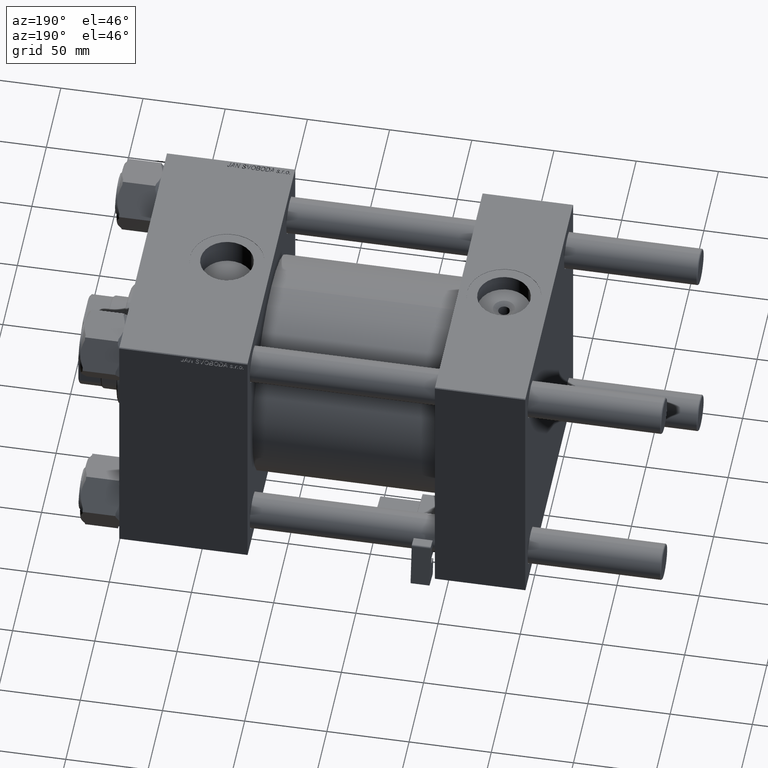
[diagram: clean part render]
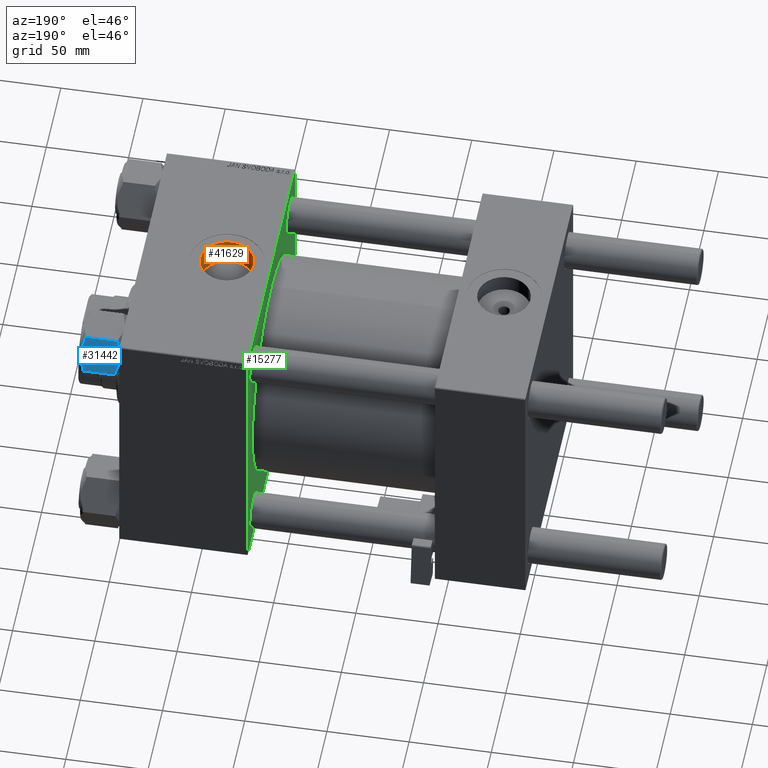
[diagram: same view with three faces highlighted in distinct colors, each labeled with its STEP entity id]
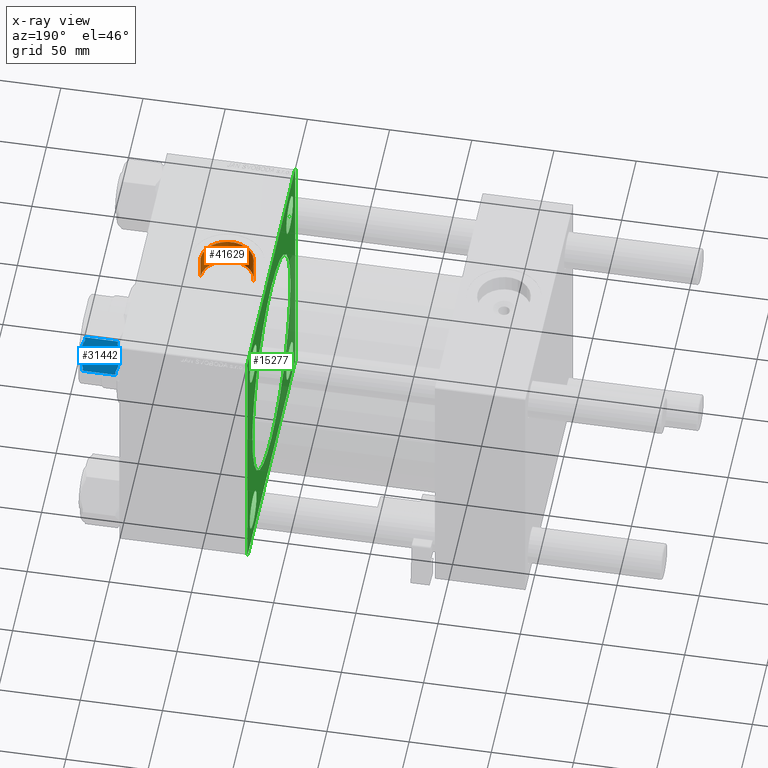
[diagram: x-ray of the same camera — body ghosted, the three highlighted faces saturated]
A machine part, auxiliary view with three faces highlighted in distinct colors.
The next image is the same camera in x-ray (body ghosted, the three faces saturated) — at least one of them is partly hidden behind the body in this view.
Their STEP definitions:

[orange] entity #41629 — the highlighted cylindrical surface (edge-blend (fillet) strip) has radius 16.12 mm, axis along (0, 0, -1).
#3795 = CARTESIAN_POINT ( 'NONE',  ( 196.0000000000000000, -1.387778780781445676E-14, 105.2999999999999829 ) ) ;
#3873 = DIRECTION ( 'NONE',  ( 0.000000000000000000, 0.000000000000000000, -1.000000000000000000 ) ) ;
#6994 = CARTESIAN_POINT ( 'NONE',  ( 179.8800000000000239, -1.387778780781445676E-14, 82.29999999999998295 ) ) ;
#7617 = CARTESIAN_POINT ( 'NONE',  ( 212.1200000000000045, -1.190365716758892667E-14, 82.29999999999998295 ) ) ;
#7730 = CARTESIAN_POINT ( 'NONE',  ( 212.1200000000000045, -1.190365716758892667E-14, 66.09999999999998010 ) ) ;
#9325 = ORIENTED_EDGE ( 'NONE', *, *, #51300, .T. ) ;
#10613 = DIRECTION ( 'NONE',  ( 0.000000000000000000, 0.000000000000000000, 1.000000000000000000 ) ) ;
#11152 = CARTESIAN_POINT ( 'NONE',  ( 196.0000000000000000, -1.387778780781445676E-14, 66.09999999999998010 ) ) ;
#12385 = DIRECTION ( 'NONE',  ( -0.000000000000000000, -0.000000000000000000, -1.000000000000000000 ) ) ;
#14525 = EDGE_LOOP ( 'NONE', ( #50724, #9325, #43600, #21836 ) ) ;
#15154 = DIRECTION ( 'NONE',  ( 1.000000000000000000, 0.000000000000000000, 0.000000000000000000 ) ) ;
#16196 = CARTESIAN_POINT ( 'NONE',  ( 179.8800000000000239, -1.387778780781445676E-14, 66.09999999999998010 ) ) ;
#16329 = FACE_OUTER_BOUND ( 'NONE', #14525, .T. ) ;
#17672 = VECTOR ( 'NONE', #34645, 1000.000000000000000 ) ;
#19776 = CIRCLE ( 'NONE', #28299, 16.11999999999999389 ) ;
#21458 = VECTOR ( 'NONE', #3873, 1000.000000000000000 ) ;
#21836 = ORIENTED_EDGE ( 'NONE', *, *, #37182, .F. ) ;
#22405 = LINE ( 'NONE', #38623, #17672 ) ;
#23687 = VERTEX_POINT ( 'NONE', #16196 ) ;
#27651 = AXIS2_PLACEMENT_3D ( 'NONE', #44607, #12385, #36645 ) ;
#28038 = AXIS2_PLACEMENT_3D ( 'NONE', #3795, #36819, #36032 ) ;
#28299 = AXIS2_PLACEMENT_3D ( 'NONE', #11152, #10613, #15154 ) ;
#32513 = EDGE_CURVE ( 'NONE', #32545, #35892, #32796, .T. ) ;
#32545 = VERTEX_POINT ( 'NONE', #7617 ) ;
#32796 = CIRCLE ( 'NONE', #27651, 16.11999999999999389 ) ;
#34645 = DIRECTION ( 'NONE',  ( 0.000000000000000000, 0.000000000000000000, -1.000000000000000000 ) ) ;
#35892 = VERTEX_POINT ( 'NONE', #6994 ) ;
#36032 = DIRECTION ( 'NONE',  ( -1.000000000000000000, 0.000000000000000000, 0.000000000000000000 ) ) ;
#36645 = DIRECTION ( 'NONE',  ( 1.000000000000000000, 0.000000000000000000, 0.000000000000000000 ) ) ;
#36819 = DIRECTION ( 'NONE',  ( 0.000000000000000000, 0.000000000000000000, -1.000000000000000000 ) ) ;
#37182 = EDGE_CURVE ( 'NONE', #35892, #23687, #22405, .T. ) ;
#38060 = VERTEX_POINT ( 'NONE', #7730 ) ;
#38623 = CARTESIAN_POINT ( 'NONE',  ( 179.8800000000000239, -1.387778780781445676E-14, 105.2999999999999829 ) ) ;
#40278 = CYLINDRICAL_SURFACE ( 'NONE', #28038, 16.11999999999999389 ) ;
#41629 = ADVANCED_FACE ( 'NONE', ( #16329 ), #40278, .F. ) ;
#43600 = ORIENTED_EDGE ( 'NONE', *, *, #52446, .F. ) ;
#44068 = LINE ( 'NONE', #52587, #21458 ) ;
#44607 = CARTESIAN_POINT ( 'NONE',  ( 196.0000000000000000, -1.387778780781445676E-14, 82.29999999999998295 ) ) ;
#50724 = ORIENTED_EDGE ( 'NONE', *, *, #32513, .F. ) ;
#51300 = EDGE_CURVE ( 'NONE', #32545, #38060, #44068, .T. ) ;
#52446 = EDGE_CURVE ( 'NONE', #23687, #38060, #19776, .T. ) ;
#52587 = CARTESIAN_POINT ( 'NONE',  ( 212.1200000000000045, -1.190365716758892509E-14, 105.2999999999999829 ) ) ;

[blue] entity #31442 — the highlighted planar face has unit normal (-0, -0.9104, -0.4137).
#214 = EDGE_CURVE ( 'NONE', #40071, #34348, #11263, .T. ) ;
#285 = CARTESIAN_POINT ( 'NONE',  ( -0.7711943830714006465, 18.72346922981957462, -0.01195010307163931612 ) ) ;
#541 = CARTESIAN_POINT ( 'NONE',  ( -5.284196261866802580, 18.72346922981957107, -0.7181181227872970307 ) ) ;
#1169 = DIRECTION ( 'NONE',  ( 8.023697853731762712E-16, -1.000000000000000000, 0.000000000000000000 ) ) ;
#2153 = CARTESIAN_POINT ( 'NONE',  ( -3.046460787050294439, 18.72346922981957817, -23.80854718362129319 ) ) ;
#3135 = CARTESIAN_POINT ( 'NONE',  ( -8.882222521378199787, 18.72346922981957107, -2.000000000000000000 ) ) ;
#3552 = EDGE_CURVE ( 'NONE', #23696, #39832, #7657, .T. ) ;
#3809 = CARTESIAN_POINT ( 'NONE',  ( 10.80999999999998629, 18.72346922981958528, -22.00000000000000000 ) ) ;
#4565 = VERTEX_POINT ( 'NONE', #51193 ) ;
#5234 = ORIENTED_EDGE ( 'NONE', *, *, #41963, .F. ) ;
#5282 = LINE ( 'NONE', #13529, #8411 ) ;
#5314 = CARTESIAN_POINT ( 'NONE',  ( -3.058371725687361486, 18.72346922981957462, -0.2332142928950868555 ) ) ;
#5461 = CARTESIAN_POINT ( 'NONE',  ( 6.004110770064962743, 18.72346922981957817, -0.9271504873037269556 ) ) ;
#5836 = VECTOR ( 'NONE', #35346, 1000.000000000000000 ) ;
#6572 = ORIENTED_EDGE ( 'NONE', *, *, #9795, .F. ) ;
#7657 = LINE ( 'NONE', #15652, #5836 ) ;
#7700 = VERTEX_POINT ( 'NONE', #31035 ) ;
#8078 = AXIS2_PLACEMENT_3D ( 'NONE', #9415, #1169, #30414 ) ;
#8411 = VECTOR ( 'NONE', #29257, 1000.000000000000000 ) ;
#8523 = CARTESIAN_POINT ( 'NONE',  ( 3.806221811192755933, 18.72346922981958528, -23.63054087581592810 ) ) ;
#8789 = CARTESIAN_POINT ( 'NONE',  ( -7.459573834530397463, 18.72346922981957107, -1.419798007050268929 ) ) ;
#9415 = CARTESIAN_POINT ( 'NONE',  ( -10.81000000000001471, 18.72346922981956752, -24.00000000000000000 ) ) ;
#9760 = ORIENTED_EDGE ( 'NONE', *, *, #28777, .F. ) ;
#9795 = EDGE_CURVE ( 'NONE', #4565, #40071, #10904, .T. ) ;
#9880 = CARTESIAN_POINT ( 'NONE',  ( -8.180319050237788048, 18.72346922981957107, -22.30084069178079176 ) ) ;
#10036 = ORIENTED_EDGE ( 'NONE', *, *, #28157, .F. ) ;
#10904 = LINE ( 'NONE', #23977, #28721 ) ;
#11263 = B_SPLINE_CURVE_WITH_KNOTS ( 'NONE', 3,
 ( #49916, #41927, #25450, #5461, #21715, #37433, #13196, #17727 ),
 .UNSPECIFIED., .F., .F.,
 ( 4, 2, 2, 4 ),
 ( 0.02914159164821654435, 0.03142872273350533208, 0.03371585381879412674, 0.03829011598937170913 ),
 .UNSPECIFIED. ) ;
#11377 = CARTESIAN_POINT ( 'NONE',  ( -10.81000000000001471, 18.72346922981956752, -24.00000000000000000 ) ) ;
#11980 = VECTOR ( 'NONE', #27358, 1000.000000000000000 ) ;
#12244 = CARTESIAN_POINT ( 'NONE',  ( 5.284196261866782152, 18.72346922981958528, -23.28188187721269742 ) ) ;
#12504 = CARTESIAN_POINT ( 'NONE',  ( 1.921304447834779605, 18.72346922981957817, -23.90544093450552765 ) ) ;
#12793 = EDGE_CURVE ( 'NONE', #39832, #4565, #5282, .T. ) ;
#13040 = CARTESIAN_POINT ( 'NONE',  ( 8.177288578347823744, 18.72346922981958883, -22.30213957303345396 ) ) ;
#13165 = CARTESIAN_POINT ( 'NONE',  ( -10.81000000000001471, 18.72346922981956752, -22.00000000000000000 ) ) ;
#13196 = CARTESIAN_POINT ( 'NONE',  ( 1.538851192155953340, 18.72346922981958173, -1.895998549134026195E-14 ) ) ;
#13529 = CARTESIAN_POINT ( 'NONE',  ( 10.80999999999998629, 18.72346922981958528, -24.00000000000000000 ) ) ;
#14988 = VECTOR ( 'NONE', #51229, 1000.000000000000000 ) ;
#15652 = CARTESIAN_POINT ( 'NONE',  ( -10.81000000000001471, 18.72346922981956752, -22.00000000000000000 ) ) ;
#15992 = CARTESIAN_POINT ( 'NONE',  ( 0.3838633933595110292, 18.72346922981957817, -23.99999999999998224 ) ) ;
#16461 = CARTESIAN_POINT ( 'NONE',  ( 8.882222521378167812, 18.72346922981958528, -22.00000000000000000 ) ) ;
#16791 = CARTESIAN_POINT ( 'NONE',  ( -6.014330298555132792, 18.72346922981957107, -0.9304907305360451408 ) ) ;
#17125 = B_SPLINE_CURVE_WITH_KNOTS ( 'NONE', 3,
 ( #33293, #15992, #24784, #32225, #12504, #48714, #8523, #12244, #49502, #32761, #13040, #20253 ),
 .UNSPECIFIED., .F., .F.,
 ( 4, 2, 2, 2, 2, 4 ),
 ( 0.03829011598937170219, 0.03943115666170205619, 0.04057219733403241019, 0.04285427867869311819, 0.04513636002335383313, 0.04741844136801454113 ),
 .UNSPECIFIED. ) ;
#17727 = CARTESIAN_POINT ( 'NONE',  ( -1.502314598737160570E-14, 18.72346922981957817, 0.000000000000000000 ) ) ;
#18662 = CARTESIAN_POINT ( 'NONE',  ( -1.538851192155984204, 18.72346922981958173, -23.99999999999998934 ) ) ;
#18799 = ORIENTED_EDGE ( 'NONE', *, *, #12793, .F. ) ;
#19134 = CARTESIAN_POINT ( 'NONE',  ( 8.882222521378167812, 18.72346922981958528, -2.000000000000000000 ) ) ;
#20253 = CARTESIAN_POINT ( 'NONE',  ( 8.882222521378167812, 18.72346922981958528, -22.00000000000000000 ) ) ;
#20381 = DIRECTION ( 'NONE',  ( -1.000000000000000000, -8.023697853731762712E-16, 0.000000000000000000 ) ) ;
#20459 = CARTESIAN_POINT ( 'NONE',  ( -1.502314598737160570E-14, 18.72346922981957817, -24.00000000000000000 ) ) ;
#20521 = CARTESIAN_POINT ( 'NONE',  ( -0.3838633933595416159, 18.72346922981957462, -1.912487457173910329E-14 ) ) ;
#20779 = CARTESIAN_POINT ( 'NONE',  ( -3.806221811192781246, 18.72346922981957107, -0.3694591241840637919 ) ) ;
#21715 = CARTESIAN_POINT ( 'NONE',  ( 5.269460841173438048, 18.72346922981958173, -0.7140404030614316833 ) ) ;
#22140 = CARTESIAN_POINT ( 'NONE',  ( -5.269460841173470023, 18.72346922981956752, -23.28595959693856798 ) ) ;
#23042 = LINE ( 'NONE', #26760, #14988 ) ;
#23604 = ORIENTED_EDGE ( 'NONE', *, *, #34575, .F. ) ;
#23696 = VERTEX_POINT ( 'NONE', #16461 ) ;
#23977 = CARTESIAN_POINT ( 'NONE',  ( -10.81000000000001471, 18.72346922981956752, -2.000000000000001776 ) ) ;
#24784 = CARTESIAN_POINT ( 'NONE',  ( 0.7711943830713722248, 18.72346922981957817, -23.98804989692836998 ) ) ;
#25450 = CARTESIAN_POINT ( 'NONE',  ( 7.462432408233299341, 18.72346922981958528, -1.420646699533979262 ) ) ;
#25917 = FACE_OUTER_BOUND ( 'NONE', #27933, .T. ) ;
#26135 = CARTESIAN_POINT ( 'NONE',  ( -7.462432408233326875, 18.72346922981957107, -22.57935330046602118 ) ) ;
#26760 = CARTESIAN_POINT ( 'NONE',  ( -10.81000000000001471, 18.72346922981956752, -22.00000000000000000 ) ) ;
#27358 = DIRECTION ( 'NONE',  ( -0.000000000000000000, -0.000000000000000000, 1.000000000000000000 ) ) ;
#27625 = ORIENTED_EDGE ( 'NONE', *, *, #47513, .T. ) ;
#27905 = VERTEX_POINT ( 'NONE', #30749 ) ;
#27933 = EDGE_LOOP ( 'NONE', ( #23604, #27625, #9760, #5234, #31501, #6572, #18799, #45973, #10036, #45163 ) ) ;
#28157 = EDGE_CURVE ( 'NONE', #50912, #23696, #17125, .T. ) ;
#28721 = VECTOR ( 'NONE', #40196, 1000.000000000000000 ) ;
#28777 = EDGE_CURVE ( 'NONE', #50754, #7700, #40343, .T. ) ;
#29257 = DIRECTION ( 'NONE',  ( -0.000000000000000000, -0.000000000000000000, 1.000000000000000000 ) ) ;
#29289 = CARTESIAN_POINT ( 'NONE',  ( -1.502314598737160570E-14, 18.72346922981957817, 0.000000000000000000 ) ) ;
#30414 = DIRECTION ( 'NONE',  ( 1.000000000000000000, 8.023697853731762712E-16, 0.000000000000000000 ) ) ;
#30749 = CARTESIAN_POINT ( 'NONE',  ( -8.882222521378199787, 18.72346922981957107, -22.00000000000000000 ) ) ;
#30990 = VECTOR ( 'NONE', #20381, 1000.000000000000000 ) ;
#31035 = CARTESIAN_POINT ( 'NONE',  ( -10.81000000000001471, 18.72346922981956752, -2.000000000000001776 ) ) ;
#31442 = ADVANCED_FACE ( 'NONE', ( #25917 ), #34170, .F. ) ;
#31501 = ORIENTED_EDGE ( 'NONE', *, *, #214, .F. ) ;
#32225 = CARTESIAN_POINT ( 'NONE',  ( 1.539734355582345060, 18.72346922981957817, -23.94071174619770304 ) ) ;
#32761 = CARTESIAN_POINT ( 'NONE',  ( 7.459573834530374370, 18.72346922981958173, -22.58020199294972130 ) ) ;
#33026 = CARTESIAN_POINT ( 'NONE',  ( -8.882222521378199787, 18.72346922981957107, -2.000000000000000000 ) ) ;
#33293 = CARTESIAN_POINT ( 'NONE',  ( -1.502314598737160570E-14, 18.72346922981957817, -24.00000000000000000 ) ) ;
#34170 = PLANE ( 'NONE',  #8078 ) ;
#34348 = VERTEX_POINT ( 'NONE', #40902 ) ;
#34575 = EDGE_CURVE ( 'NONE', #37510, #27905, #23042, .T. ) ;
#35346 = DIRECTION ( 'NONE',  ( 1.000000000000000000, 8.023697853731762712E-16, 0.000000000000000000 ) ) ;
#35831 = CARTESIAN_POINT ( 'NONE',  ( -10.81000000000001471, 18.72346922981956752, -2.000000000000001776 ) ) ;
#35885 = LINE ( 'NONE', #11377, #11980 ) ;
#36114 = EDGE_CURVE ( 'NONE', #27905, #50912, #46890, .T. ) ;
#36558 = B_SPLINE_CURVE_WITH_KNOTS ( 'NONE', 3,
 ( #29289, #20521, #285, #37282, #36758, #5314, #20779, #541, #16791, #8789, #49507, #33026 ),
 .UNSPECIFIED., .F., .F.,
 ( 4, 2, 2, 2, 2, 4 ),
 ( 0.03829011598937170913, 0.03943115666170206313, 0.04057219733403241713, 0.04285427867869312513, 0.04513636002335383313, 0.04741844136801454113 ),
 .UNSPECIFIED. ) ;
#36758 = CARTESIAN_POINT ( 'NONE',  ( -1.921304447834809803, 18.72346922981957462, -0.09455906549447051779 ) ) ;
#37282 = CARTESIAN_POINT ( 'NONE',  ( -1.539734355582373038, 18.72346922981957817, -0.05928825380230225151 ) ) ;
#37433 = CARTESIAN_POINT ( 'NONE',  ( 3.046460787050262908, 18.72346922981958528, -0.1914528163787014292 ) ) ;
#37510 = VERTEX_POINT ( 'NONE', #13165 ) ;
#38617 = CARTESIAN_POINT ( 'NONE',  ( -6.004110770064989389, 18.72346922981956396, -23.07284951269626561 ) ) ;
#39832 = VERTEX_POINT ( 'NONE', #3809 ) ;
#40071 = VERTEX_POINT ( 'NONE', #19134 ) ;
#40196 = DIRECTION ( 'NONE',  ( -1.000000000000000000, -8.023697853731762712E-16, 0.000000000000000000 ) ) ;
#40343 = LINE ( 'NONE', #35831, #30990 ) ;
#40902 = CARTESIAN_POINT ( 'NONE',  ( -1.502314598737160570E-14, 18.72346922981957817, 0.000000000000000000 ) ) ;
#41927 = CARTESIAN_POINT ( 'NONE',  ( 8.180319050237757850, 18.72346922981958528, -1.699159308219207798 ) ) ;
#41963 = EDGE_CURVE ( 'NONE', #34348, #50754, #36558, .T. ) ;
#42348 = CARTESIAN_POINT ( 'NONE',  ( -1.502314598737160570E-14, 18.72346922981957817, -24.00000000000000000 ) ) ;
#45163 = ORIENTED_EDGE ( 'NONE', *, *, #36114, .F. ) ;
#45973 = ORIENTED_EDGE ( 'NONE', *, *, #3552, .F. ) ;
#46337 = CARTESIAN_POINT ( 'NONE',  ( -8.882222521378199787, 18.72346922981957107, -22.00000000000000000 ) ) ;
#46890 = B_SPLINE_CURVE_WITH_KNOTS ( 'NONE', 3,
 ( #46337, #9880, #26135, #38617, #22140, #2153, #18662, #42348 ),
 .UNSPECIFIED., .F., .F.,
 ( 4, 2, 2, 4 ),
 ( 0.02914159164821654088, 0.03142872273350533208, 0.03371585381879411980, 0.03829011598937170219 ),
 .UNSPECIFIED. ) ;
#47513 = EDGE_CURVE ( 'NONE', #37510, #7700, #35885, .T. ) ;
#48714 = CARTESIAN_POINT ( 'NONE',  ( 3.058371725687332621, 18.72346922981957817, -23.76678570710492266 ) ) ;
#49502 = CARTESIAN_POINT ( 'NONE',  ( 6.014330298555108811, 18.72346922981958528, -23.06950926946394631 ) ) ;
#49507 = CARTESIAN_POINT ( 'NONE',  ( -8.177288578347846837, 18.72346922981957462, -1.697860426966554925 ) ) ;
#49916 = CARTESIAN_POINT ( 'NONE',  ( 8.882222521378167812, 18.72346922981958528, -2.000000000000000000 ) ) ;
#50754 = VERTEX_POINT ( 'NONE', #3135 ) ;
#50912 = VERTEX_POINT ( 'NONE', #20459 ) ;
#51193 = CARTESIAN_POINT ( 'NONE',  ( 10.80999999999998629, 18.72346922981958528, -2.000000000000001776 ) ) ;
#51229 = DIRECTION ( 'NONE',  ( 1.000000000000000000, 8.023697853731762712E-16, 0.000000000000000000 ) ) ;

[green] entity #15277 — the highlighted planar face has unit normal (-1, 0, 0).
#182 = DIRECTION ( 'NONE',  ( 0.000000000000000000, 0.7071067811865474617, -0.7071067811865474617 ) ) ;
#637 = DIRECTION ( 'NONE',  ( 1.000000000000000000, 0.000000000000000000, -0.000000000000000000 ) ) ;
#679 = VERTEX_POINT ( 'NONE', #51405 ) ;
#1692 = VERTEX_POINT ( 'NONE', #25535 ) ;
#3025 = FACE_BOUND ( 'NONE', #8170, .T. ) ;
#3281 = LINE ( 'NONE', #20798, #26841 ) ;
#3386 = DIRECTION ( 'NONE',  ( 0.000000000000000000, 0.000000000000000000, -1.000000000000000000 ) ) ;
#3762 = CARTESIAN_POINT ( 'NONE',  ( 169.0000000000000000, 62.95000000000000284, 62.95000000000000284 ) ) ;
#3771 = EDGE_LOOP ( 'NONE', ( #52563, #50092 ) ) ;
#3939 = VERTEX_POINT ( 'NONE', #8123 ) ;
#4097 = PLANE ( 'NONE',  #45947 ) ;
#4267 = VECTOR ( 'NONE', #182, 1000.000000000000114 ) ;
#4364 = CARTESIAN_POINT ( 'NONE',  ( 169.0000000000000000, 62.95000000000000284, 62.95000000000000284 ) ) ;
#4541 = CARTESIAN_POINT ( 'NONE',  ( 169.0000000000000000, 0.000000000000000000, 0.000000000000000000 ) ) ;
#4636 = CARTESIAN_POINT ( 'NONE',  ( 169.0000000000000000, -62.94999999999998153, -62.95000000000001705 ) ) ;
#4912 = CIRCLE ( 'NONE', #33816, 11.49999999999992717 ) ;
#5179 = VECTOR ( 'NONE', #43295, 999.9999999999998863 ) ;
#5509 = VERTEX_POINT ( 'NONE', #16875 ) ;
#5683 = EDGE_CURVE ( 'NONE', #25316, #679, #20927, .T. ) ;
#5926 = VECTOR ( 'NONE', #8550, 999.9999999999998863 ) ;
#6868 = AXIS2_PLACEMENT_3D ( 'NONE', #10915, #35156, #30362 ) ;
#7625 = CARTESIAN_POINT ( 'NONE',  ( 169.0000000000000000, 62.95000000000000284, 51.45000000000008100 ) ) ;
#7780 = DIRECTION ( 'NONE',  ( 0.000000000000000000, 0.000000000000000000, 1.000000000000000000 ) ) ;
#7783 = ORIENTED_EDGE ( 'NONE', *, *, #48596, .T. ) ;
#8074 = EDGE_CURVE ( 'NONE', #34325, #36106, #19474, .T. ) ;
#8123 = CARTESIAN_POINT ( 'NONE',  ( 169.0000000000000000, -82.50000000000000000, -82.00000000000000000 ) ) ;
#8170 = EDGE_LOOP ( 'NONE', ( #7783, #35433 ) ) ;
#8289 = DIRECTION ( 'NONE',  ( 0.000000000000000000, 0.000000000000000000, 1.000000000000000000 ) ) ;
#8360 = FACE_BOUND ( 'NONE', #29735, .T. ) ;
#8509 = EDGE_CURVE ( 'NONE', #29293, #3939, #49457, .T. ) ;
#8550 = DIRECTION ( 'NONE',  ( -0.000000000000000000, 0.7071067811865574537, 0.7071067811865376918 ) ) ;
#8649 = DIRECTION ( 'NONE',  ( 0.000000000000000000, 0.000000000000000000, 1.000000000000000000 ) ) ;
#8766 = EDGE_CURVE ( 'NONE', #19185, #12600, #4912, .T. ) ;
#9023 = EDGE_CURVE ( 'NONE', #679, #25316, #22731, .T. ) ;
#9153 = ORIENTED_EDGE ( 'NONE', *, *, #16201, .T. ) ;
#9563 = CARTESIAN_POINT ( 'NONE',  ( 169.0000000000000000, 8.021436534415164826E-15, -65.50000000000001421 ) ) ;
#10722 = EDGE_LOOP ( 'NONE', ( #45897, #9153, #11006, #20855, #12571, #14458, #50162, #42968 ) ) ;
#10915 = CARTESIAN_POINT ( 'NONE',  ( 169.0000000000000000, -62.94999999999998153, 62.95000000000001705 ) ) ;
#11006 = ORIENTED_EDGE ( 'NONE', *, *, #8509, .F. ) ;
#11011 = VECTOR ( 'NONE', #3386, 1000.000000000000000 ) ;
#11501 = VERTEX_POINT ( 'NONE', #9563 ) ;
#11712 = VERTEX_POINT ( 'NONE', #45185 ) ;
#11793 = CIRCLE ( 'NONE', #38975, 65.50000000000001421 ) ;
#11855 = EDGE_CURVE ( 'NONE', #11712, #11501, #11793, .T. ) ;
#12034 = DIRECTION ( 'NONE',  ( 1.000000000000000000, 0.000000000000000000, -0.000000000000000000 ) ) ;
#12532 = CARTESIAN_POINT ( 'NONE',  ( 169.0000000000000000, -82.24999999999882050, 82.25000000000110845 ) ) ;
#12542 = CARTESIAN_POINT ( 'NONE',  ( 169.0000000000000000, 82.25000000000001421, -82.25000000000001421 ) ) ;
#12571 = ORIENTED_EDGE ( 'NONE', *, *, #8074, .F. ) ;
#12600 = VERTEX_POINT ( 'NONE', #22618 ) ;
#13328 = DIRECTION ( 'NONE',  ( 0.000000000000000000, -1.000000000000000000, 0.000000000000000000 ) ) ;
#14458 = ORIENTED_EDGE ( 'NONE', *, *, #14981, .T. ) ;
#14950 = DIRECTION ( 'NONE',  ( 0.000000000000000000, 0.000000000000000000, 1.000000000000000000 ) ) ;
#14981 = EDGE_CURVE ( 'NONE', #34325, #5509, #36659, .T. ) ;
#15123 = VERTEX_POINT ( 'NONE', #49924 ) ;
#15277 = ADVANCED_FACE ( 'NONE', ( #3025, #35264, #51739, #8360, #24620, #48814 ), #4097, .T. ) ;
#15355 = CARTESIAN_POINT ( 'NONE',  ( 169.0000000000000000, 82.00000000000001421, -82.50000000000002842 ) ) ;
#15404 = AXIS2_PLACEMENT_3D ( 'NONE', #36270, #12034, #7780 ) ;
#16201 = EDGE_CURVE ( 'NONE', #15123, #3939, #18056, .T. ) ;
#16875 = CARTESIAN_POINT ( 'NONE',  ( 169.0000000000000000, 82.50000000000001421, 81.99999999999994316 ) ) ;
#16908 = DIRECTION ( 'NONE',  ( 1.000000000000000000, 0.000000000000000000, -0.000000000000000000 ) ) ;
#17106 = EDGE_CURVE ( 'NONE', #5509, #30910, #36147, .T. ) ;
#17602 = EDGE_CURVE ( 'NONE', #1692, #33505, #27180, .T. ) ;
#17607 = CARTESIAN_POINT ( 'NONE',  ( 169.0000000000000000, -62.94999999999998153, -51.45000000000009521 ) ) ;
#17700 = EDGE_CURVE ( 'NONE', #29293, #36106, #25589, .T. ) ;
#17897 = CARTESIAN_POINT ( 'NONE',  ( 169.0000000000000000, -81.99999999999995737, 82.49999999999997158 ) ) ;
#18056 = LINE ( 'NONE', #23098, #5179 ) ;
#18740 = VERTEX_POINT ( 'NONE', #17607 ) ;
#19185 = VERTEX_POINT ( 'NONE', #47024 ) ;
#19474 = LINE ( 'NONE', #44480, #47340 ) ;
#20065 = EDGE_CURVE ( 'NONE', #27584, #18740, #34107, .T. ) ;
#20169 = EDGE_LOOP ( 'NONE', ( #50631, #30164 ) ) ;
#20798 = CARTESIAN_POINT ( 'NONE',  ( 169.0000000000000000, 82.50000000000001421, -82.50000000000002842 ) ) ;
#20855 = ORIENTED_EDGE ( 'NONE', *, *, #17700, .T. ) ;
#20927 = CIRCLE ( 'NONE', #35356, 11.49999999999992717 ) ;
#21261 = DIRECTION ( 'NONE',  ( 1.000000000000000000, 0.000000000000000000, 0.000000000000000000 ) ) ;
#21793 = EDGE_CURVE ( 'NONE', #33505, #1692, #28220, .T. ) ;
#22016 = EDGE_LOOP ( 'NONE', ( #29137, #27769 ) ) ;
#22334 = CARTESIAN_POINT ( 'NONE',  ( 169.0000000000000000, -82.49999999999997158, 81.99999999999997158 ) ) ;
#22618 = CARTESIAN_POINT ( 'NONE',  ( 169.0000000000000000, -62.94999999999998153, 74.44999999999994600 ) ) ;
#22731 = CIRCLE ( 'NONE', #26162, 11.49999999999992717 ) ;
#23098 = CARTESIAN_POINT ( 'NONE',  ( 169.0000000000000000, -82.25000000000115108, -82.24999999999886313 ) ) ;
#24052 = CIRCLE ( 'NONE', #38447, 65.50000000000001421 ) ;
#24435 = VECTOR ( 'NONE', #48932, 1000.000000000000000 ) ;
#24539 = DIRECTION ( 'NONE',  ( 0.000000000000000000, 0.000000000000000000, -1.000000000000000000 ) ) ;
#24620 = FACE_BOUND ( 'NONE', #22016, .T. ) ;
#24812 = AXIS2_PLACEMENT_3D ( 'NONE', #4364, #637, #48813 ) ;
#25316 = VERTEX_POINT ( 'NONE', #44543 ) ;
#25535 = CARTESIAN_POINT ( 'NONE',  ( 169.0000000000000000, 62.95000000000000284, 74.44999999999993179 ) ) ;
#25589 = LINE ( 'NONE', #12532, #5926 ) ;
#26162 = AXIS2_PLACEMENT_3D ( 'NONE', #35258, #43481, #44292 ) ;
#26841 = VECTOR ( 'NONE', #13328, 1000.000000000000000 ) ;
#26933 = DIRECTION ( 'NONE',  ( 1.000000000000000000, 0.000000000000000000, -0.000000000000000000 ) ) ;
#27180 = CIRCLE ( 'NONE', #36542, 11.49999999999992717 ) ;
#27584 = VERTEX_POINT ( 'NONE', #48105 ) ;
#27741 = DIRECTION ( 'NONE',  ( 1.000000000000000000, 0.000000000000000000, -0.000000000000000000 ) ) ;
#27769 = ORIENTED_EDGE ( 'NONE', *, *, #52339, .T. ) ;
#27898 = CARTESIAN_POINT ( 'NONE',  ( 169.0000000000000000, 82.50000000000001421, 82.50000000000000000 ) ) ;
#28147 = CIRCLE ( 'NONE', #40865, 11.49999999999992717 ) ;
#28188 = CIRCLE ( 'NONE', #6868, 11.49999999999992717 ) ;
#28220 = CIRCLE ( 'NONE', #24812, 11.49999999999992717 ) ;
#28263 = DIRECTION ( 'NONE',  ( 0.000000000000000000, -1.000000000000000000, -1.682156097916904081E-16 ) ) ;
#29137 = ORIENTED_EDGE ( 'NONE', *, *, #11855, .T. ) ;
#29293 = VERTEX_POINT ( 'NONE', #22334 ) ;
#29735 = EDGE_LOOP ( 'NONE', ( #50393, #34719 ) ) ;
#30164 = ORIENTED_EDGE ( 'NONE', *, *, #21793, .T. ) ;
#30362 = DIRECTION ( 'NONE',  ( 0.000000000000000000, 0.000000000000000000, 1.000000000000000000 ) ) ;
#30910 = VERTEX_POINT ( 'NONE', #43891 ) ;
#32851 = EDGE_CURVE ( 'NONE', #33558, #15123, #3281, .T. ) ;
#33253 = CARTESIAN_POINT ( 'NONE',  ( 169.0000000000000000, 0.000000000000000000, 0.000000000000000000 ) ) ;
#33505 = VERTEX_POINT ( 'NONE', #7625 ) ;
#33558 = VERTEX_POINT ( 'NONE', #15355 ) ;
#33589 = DIRECTION ( 'NONE',  ( -0.000000000000000000, -0.7071067811865474617, -0.7071067811865474617 ) ) ;
#33705 = CARTESIAN_POINT ( 'NONE',  ( 169.0000000000000000, -62.94999999999998153, 62.95000000000001705 ) ) ;
#33765 = CARTESIAN_POINT ( 'NONE',  ( 169.0000000000000000, -82.49999999999997158, 82.49999999999997158 ) ) ;
#33816 = AXIS2_PLACEMENT_3D ( 'NONE', #33705, #40628, #36908 ) ;
#34107 = CIRCLE ( 'NONE', #15404, 11.49999999999992717 ) ;
#34325 = VERTEX_POINT ( 'NONE', #35066 ) ;
#34719 = ORIENTED_EDGE ( 'NONE', *, *, #20065, .T. ) ;
#35066 = CARTESIAN_POINT ( 'NONE',  ( 169.0000000000000000, 81.99999999999995737, 82.50000000000000000 ) ) ;
#35156 = DIRECTION ( 'NONE',  ( 1.000000000000000000, 0.000000000000000000, -0.000000000000000000 ) ) ;
#35258 = CARTESIAN_POINT ( 'NONE',  ( 169.0000000000000000, 62.95000000000000284, -62.95000000000000284 ) ) ;
#35264 = FACE_BOUND ( 'NONE', #20169, .T. ) ;
#35356 = AXIS2_PLACEMENT_3D ( 'NONE', #35988, #26933, #14950 ) ;
#35433 = ORIENTED_EDGE ( 'NONE', *, *, #8766, .T. ) ;
#35665 = VECTOR ( 'NONE', #33589, 1000.000000000000114 ) ;
#35988 = CARTESIAN_POINT ( 'NONE',  ( 169.0000000000000000, 62.95000000000000284, -62.95000000000000284 ) ) ;
#36106 = VERTEX_POINT ( 'NONE', #17897 ) ;
#36147 = LINE ( 'NONE', #27898, #11011 ) ;
#36270 = CARTESIAN_POINT ( 'NONE',  ( 169.0000000000000000, -62.94999999999998153, -62.95000000000001705 ) ) ;
#36542 = AXIS2_PLACEMENT_3D ( 'NONE', #3762, #27741, #8289 ) ;
#36659 = LINE ( 'NONE', #40112, #4267 ) ;
#36908 = DIRECTION ( 'NONE',  ( 0.000000000000000000, 0.000000000000000000, 1.000000000000000000 ) ) ;
#37756 = DIRECTION ( 'NONE',  ( 0.000000000000000000, 0.000000000000000000, -1.000000000000000000 ) ) ;
#38447 = AXIS2_PLACEMENT_3D ( 'NONE', #4541, #48995, #24539 ) ;
#38975 = AXIS2_PLACEMENT_3D ( 'NONE', #33253, #21261, #37756 ) ;
#40112 = CARTESIAN_POINT ( 'NONE',  ( 169.0000000000000000, 82.24999999999997158, 82.24999999999997158 ) ) ;
#40628 = DIRECTION ( 'NONE',  ( 1.000000000000000000, 0.000000000000000000, -0.000000000000000000 ) ) ;
#40865 = AXIS2_PLACEMENT_3D ( 'NONE', #4636, #16908, #8649 ) ;
#41097 = CARTESIAN_POINT ( 'NONE',  ( 169.0000000000000000, 0.000000000000000000, 0.000000000000000000 ) ) ;
#41286 = LINE ( 'NONE', #12542, #35665 ) ;
#42968 = ORIENTED_EDGE ( 'NONE', *, *, #44337, .T. ) ;
#43295 = DIRECTION ( 'NONE',  ( 0.000000000000000000, -0.7071067811865376918, 0.7071067811865574537 ) ) ;
#43481 = DIRECTION ( 'NONE',  ( 1.000000000000000000, 0.000000000000000000, -0.000000000000000000 ) ) ;
#43891 = CARTESIAN_POINT ( 'NONE',  ( 169.0000000000000000, 82.50000000000001421, -82.00000000000002842 ) ) ;
#44292 = DIRECTION ( 'NONE',  ( 0.000000000000000000, 0.000000000000000000, 1.000000000000000000 ) ) ;
#44337 = EDGE_CURVE ( 'NONE', #30910, #33558, #41286, .T. ) ;
#44480 = CARTESIAN_POINT ( 'NONE',  ( 169.0000000000000000, 82.50000000000001421, 82.50000000000000000 ) ) ;
#44543 = CARTESIAN_POINT ( 'NONE',  ( 169.0000000000000000, 62.95000000000000284, -74.44999999999993179 ) ) ;
#45185 = CARTESIAN_POINT ( 'NONE',  ( 169.0000000000000000, 0.000000000000000000, 65.50000000000001421 ) ) ;
#45897 = ORIENTED_EDGE ( 'NONE', *, *, #32851, .T. ) ;
#45947 = AXIS2_PLACEMENT_3D ( 'NONE', #41097, #48557, #48291 ) ;
#47024 = CARTESIAN_POINT ( 'NONE',  ( 169.0000000000000000, -62.94999999999998153, 51.45000000000009521 ) ) ;
#47340 = VECTOR ( 'NONE', #28263, 1000.000000000000000 ) ;
#47852 = EDGE_CURVE ( 'NONE', #18740, #27584, #28147, .T. ) ;
#48105 = CARTESIAN_POINT ( 'NONE',  ( 169.0000000000000000, -62.94999999999998153, -74.44999999999994600 ) ) ;
#48291 = DIRECTION ( 'NONE',  ( 0.000000000000000000, 0.000000000000000000, 1.000000000000000000 ) ) ;
#48557 = DIRECTION ( 'NONE',  ( -1.000000000000000000, -0.000000000000000000, 0.000000000000000000 ) ) ;
#48596 = EDGE_CURVE ( 'NONE', #12600, #19185, #28188, .T. ) ;
#48813 = DIRECTION ( 'NONE',  ( 0.000000000000000000, 0.000000000000000000, 1.000000000000000000 ) ) ;
#48814 = FACE_OUTER_BOUND ( 'NONE', #10722, .T. ) ;
#48932 = DIRECTION ( 'NONE',  ( 0.000000000000000000, -1.682156097916903834E-16, -1.000000000000000000 ) ) ;
#48995 = DIRECTION ( 'NONE',  ( 1.000000000000000000, 0.000000000000000000, 0.000000000000000000 ) ) ;
#49457 = LINE ( 'NONE', #33765, #24435 ) ;
#49924 = CARTESIAN_POINT ( 'NONE',  ( 169.0000000000000000, -81.99999999999998579, -82.50000000000002842 ) ) ;
#50092 = ORIENTED_EDGE ( 'NONE', *, *, #5683, .T. ) ;
#50162 = ORIENTED_EDGE ( 'NONE', *, *, #17106, .T. ) ;
#50393 = ORIENTED_EDGE ( 'NONE', *, *, #47852, .T. ) ;
#50631 = ORIENTED_EDGE ( 'NONE', *, *, #17602, .T. ) ;
#51405 = CARTESIAN_POINT ( 'NONE',  ( 169.0000000000000000, 62.95000000000000284, -51.45000000000008100 ) ) ;
#51739 = FACE_BOUND ( 'NONE', #3771, .T. ) ;
#52339 = EDGE_CURVE ( 'NONE', #11501, #11712, #24052, .T. ) ;
#52563 = ORIENTED_EDGE ( 'NONE', *, *, #9023, .T. ) ;